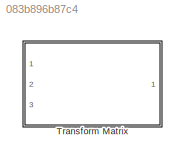
MODEL slx_083b896b87c4
KIND library
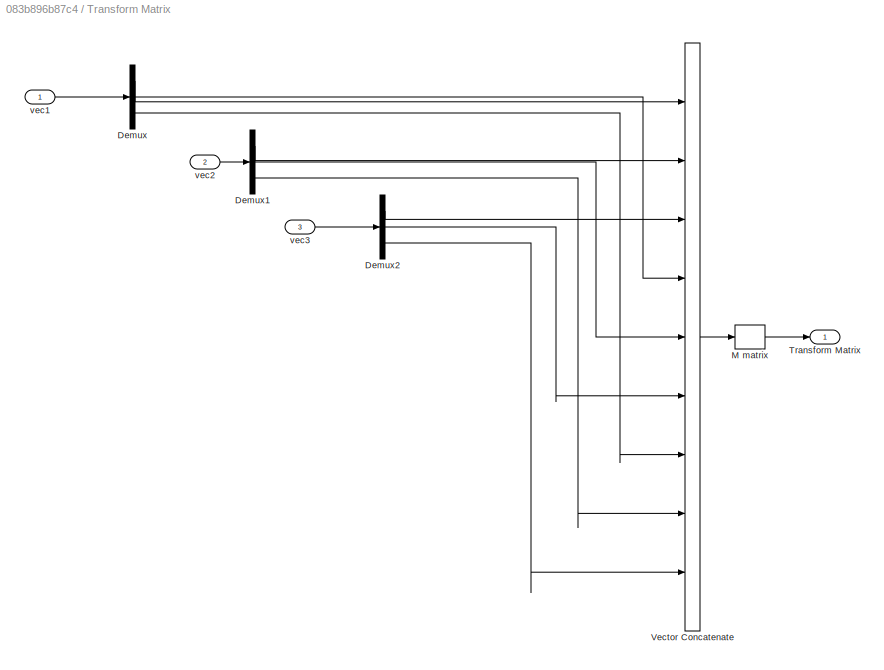
BLOCK [SubSystem] Transform Matrix
  Ports = [3, 1]
  RequestExecContextInheritance = off
BLOCK [Demux] Transform Matrix/Demux
  DisplayOption = bar
  Outputs = 3
  Ports = [1, 3]
BLOCK [Demux] Transform Matrix/Demux1
  DisplayOption = bar
  Outputs = 3
  Ports = [1, 3]
BLOCK [Demux] Transform Matrix/Demux2
  DisplayOption = bar
  Outputs = 3
  Ports = [1, 3]
BLOCK [Reshape] Transform Matrix/M matrix
  OutputDimensionality = Customize
  OutputDimensions = [3,3]
  Ports = [1, 1]
BLOCK [Outport] Transform Matrix/Transform Matrix
  IconDisplay = Port number
BLOCK [Concatenate] Transform Matrix/Vector Concatenate
  NumInputs = 9
  Ports = [9, 1]
BLOCK [Inport] Transform Matrix/vec1
  IconDisplay = Port number
BLOCK [Inport] Transform Matrix/vec2
  IconDisplay = Port number
  Port = 2
BLOCK [Inport] Transform Matrix/vec3
  IconDisplay = Port number
  Port = 3
LINE Transform Matrix/Demux1:1 -> Transform Matrix/Vector Concatenate:2
LINE Transform Matrix/Demux1:2 -> Transform Matrix/Vector Concatenate:5
LINE Transform Matrix/Demux1:3 -> Transform Matrix/Vector Concatenate:8
LINE Transform Matrix/Demux2:1 -> Transform Matrix/Vector Concatenate:3
LINE Transform Matrix/Demux2:2 -> Transform Matrix/Vector Concatenate:6
LINE Transform Matrix/Demux2:3 -> Transform Matrix/Vector Concatenate:9
LINE Transform Matrix/Demux:1 -> Transform Matrix/Vector Concatenate:1
LINE Transform Matrix/Demux:2 -> Transform Matrix/Vector Concatenate:4
LINE Transform Matrix/Demux:3 -> Transform Matrix/Vector Concatenate:7
LINE Transform Matrix/M matrix:1 -> Transform Matrix/Transform Matrix:1
LINE Transform Matrix/Vector Concatenate:1 -> Transform Matrix/M matrix:1
LINE Transform Matrix/vec1:1 -> Transform Matrix/Demux:1
LINE Transform Matrix/vec2:1 -> Transform Matrix/Demux1:1
LINE Transform Matrix/vec3:1 -> Transform Matrix/Demux2:1
